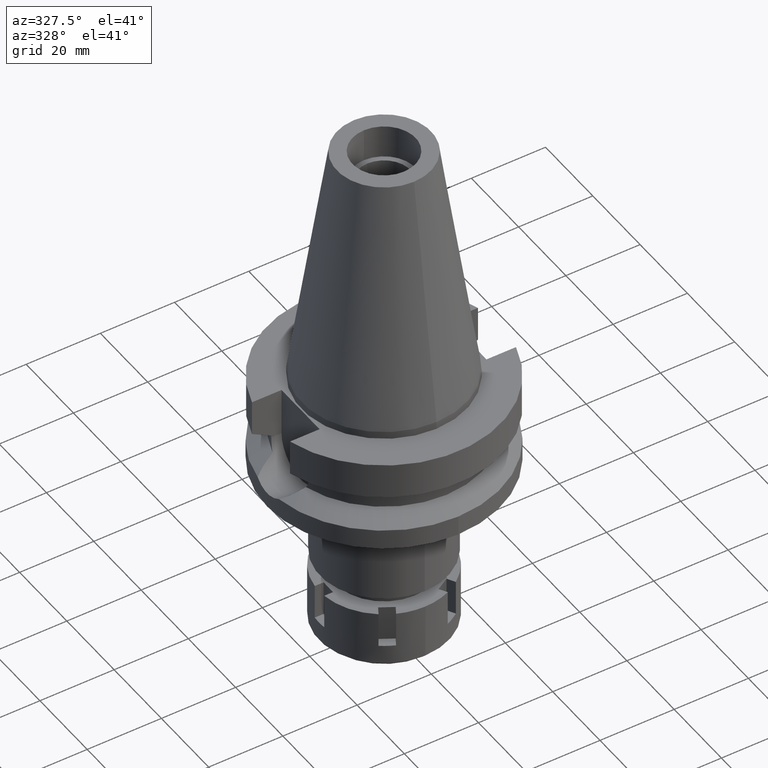
[diagram: clean part render]
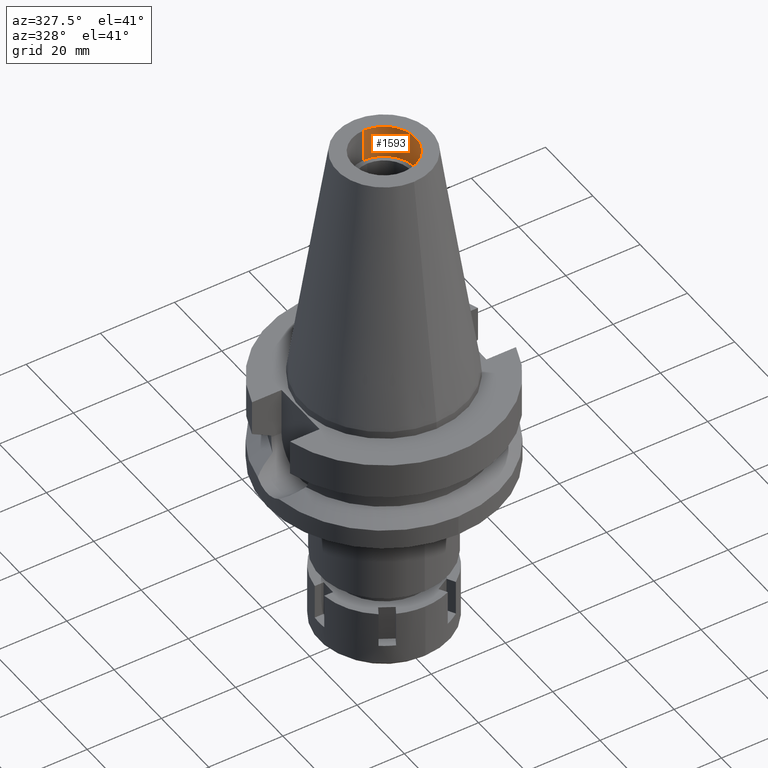
[diagram: same view with one face highlighted and labeled with its STEP entity id]
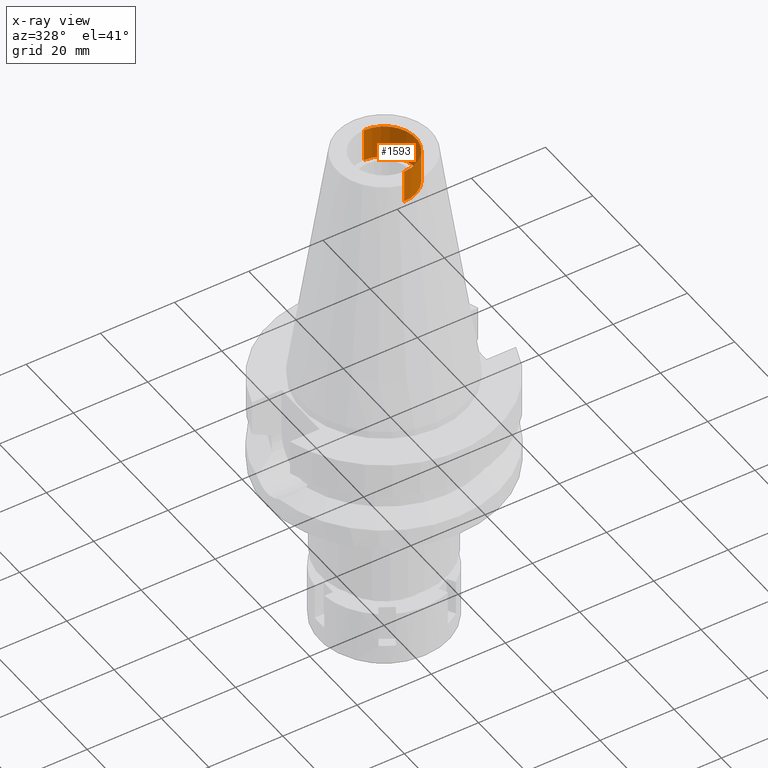
[diagram: x-ray of the same camera — body ghosted, the highlighted face saturated]
A machine part, auxiliary view. The second image highlights one B-rep face of the part: STEP entity #1593.
The next image is the same camera in x-ray: the body ghosted, the highlighted face saturated — about 0% of this face is hidden behind the body in this view.
In plain terms, the highlighted cylindrical surface (partial cylindrical patch) has radius 8.5 mm, axis along (0, 0, -1).
Its self-contained STEP definition (entity closure, byte-faithful):
#168 = VERTEX_POINT ( 'NONE', #787 ) ;
#295 = DIRECTION ( 'NONE',  ( 0.0000000000000000000, -1.000000000000000000, 0.0000000000000000000 ) ) ;
#429 = EDGE_CURVE ( 'NONE', #1731, #1407, #765, .T. ) ;
#539 = ORIENTED_EDGE ( 'NONE', *, *, #3487, .F. ) ;
#654 = CARTESIAN_POINT ( 'NONE',  ( 0.0000000000000000000, 2.106637423893000012E-14, 65.40000000000000568 ) ) ;
#682 = EDGE_LOOP ( 'NONE', ( #1020, #2698, #3286, #539 ) ) ;
#731 = EDGE_CURVE ( 'NONE', #3044, #1731, #3321, .T. ) ;
#765 = CIRCLE ( 'NONE', #2975, 8.500000000000000000 ) ;
#787 = CARTESIAN_POINT ( 'NONE',  ( 0.0000000000000000000, 8.500000000000000000, 56.39999999999999858 ) ) ;
#843 = EDGE_CURVE ( 'NONE', #168, #3044, #2744, .T. ) ;
#1020 = ORIENTED_EDGE ( 'NONE', *, *, #843, .T. ) ;
#1037 = AXIS2_PLACEMENT_3D ( 'NONE', #3544, #2001, #295 ) ;
#1407 = VERTEX_POINT ( 'NONE', #1932 ) ;
#1440 = FACE_OUTER_BOUND ( 'NONE', #682, .T. ) ;
#1495 = DIRECTION ( 'NONE',  ( 0.0000000000000000000, 0.0000000000000000000, 1.000000000000000000 ) ) ;
#1593 = ADVANCED_FACE ( 'NONE', ( #1440 ), #2499, .F. ) ;
#1682 = DIRECTION ( 'NONE',  ( 0.0000000000000000000, 0.0000000000000000000, -1.000000000000000000 ) ) ;
#1711 = DIRECTION ( 'NONE',  ( 0.0000000000000000000, 0.0000000000000000000, 1.000000000000000000 ) ) ;
#1722 = CARTESIAN_POINT ( 'NONE',  ( 0.0000000000000000000, -8.500000000000000000, 65.40000000000000568 ) ) ;
#1731 = VERTEX_POINT ( 'NONE', #1722 ) ;
#1738 = CARTESIAN_POINT ( 'NONE',  ( 0.0000000000000000000, -8.500000000000000000, 56.39999999999999858 ) ) ;
#1843 = LINE ( 'NONE', #3280, #2876 ) ;
#1883 = DIRECTION ( 'NONE',  ( 0.0000000000000000000, 0.0000000000000000000, 1.000000000000000000 ) ) ;
#1932 = CARTESIAN_POINT ( 'NONE',  ( 0.0000000000000000000, 8.500000000000000000, 65.40000000000000568 ) ) ;
#1967 = CARTESIAN_POINT ( 'NONE',  ( 0.0000000000000000000, -8.500000000000000000, 56.39999999999999858 ) ) ;
#2001 = DIRECTION ( 'NONE',  ( 0.0000000000000000000, 0.0000000000000000000, -1.000000000000000000 ) ) ;
#2294 = AXIS2_PLACEMENT_3D ( 'NONE', #2828, #1682, #3085 ) ;
#2499 = CYLINDRICAL_SURFACE ( 'NONE', #1037, 8.500000000000000000 ) ;
#2698 = ORIENTED_EDGE ( 'NONE', *, *, #731, .T. ) ;
#2744 = CIRCLE ( 'NONE', #2294, 8.500000000000000000 ) ;
#2828 = CARTESIAN_POINT ( 'NONE',  ( 0.0000000000000000000, 2.106637423893000012E-14, 56.39999999999999858 ) ) ;
#2876 = VECTOR ( 'NONE', #1883, 1000.000000000000000 ) ;
#2975 = AXIS2_PLACEMENT_3D ( 'NONE', #654, #1495, #3376 ) ;
#3044 = VERTEX_POINT ( 'NONE', #1738 ) ;
#3085 = DIRECTION ( 'NONE',  ( 0.0000000000000000000, 1.000000000000000000, 0.0000000000000000000 ) ) ;
#3109 = VECTOR ( 'NONE', #1711, 1000.000000000000000 ) ;
#3280 = CARTESIAN_POINT ( 'NONE',  ( 0.0000000000000000000, 8.500000000000000000, 56.39999999999999858 ) ) ;
#3286 = ORIENTED_EDGE ( 'NONE', *, *, #429, .T. ) ;
#3321 = LINE ( 'NONE', #1967, #3109 ) ;
#3376 = DIRECTION ( 'NONE',  ( 0.0000000000000000000, -1.000000000000000000, 0.0000000000000000000 ) ) ;
#3487 = EDGE_CURVE ( 'NONE', #168, #1407, #1843, .T. ) ;
#3544 = CARTESIAN_POINT ( 'NONE',  ( 0.0000000000000000000, 2.106637423893000012E-14, 72.01999999999999602 ) ) ;